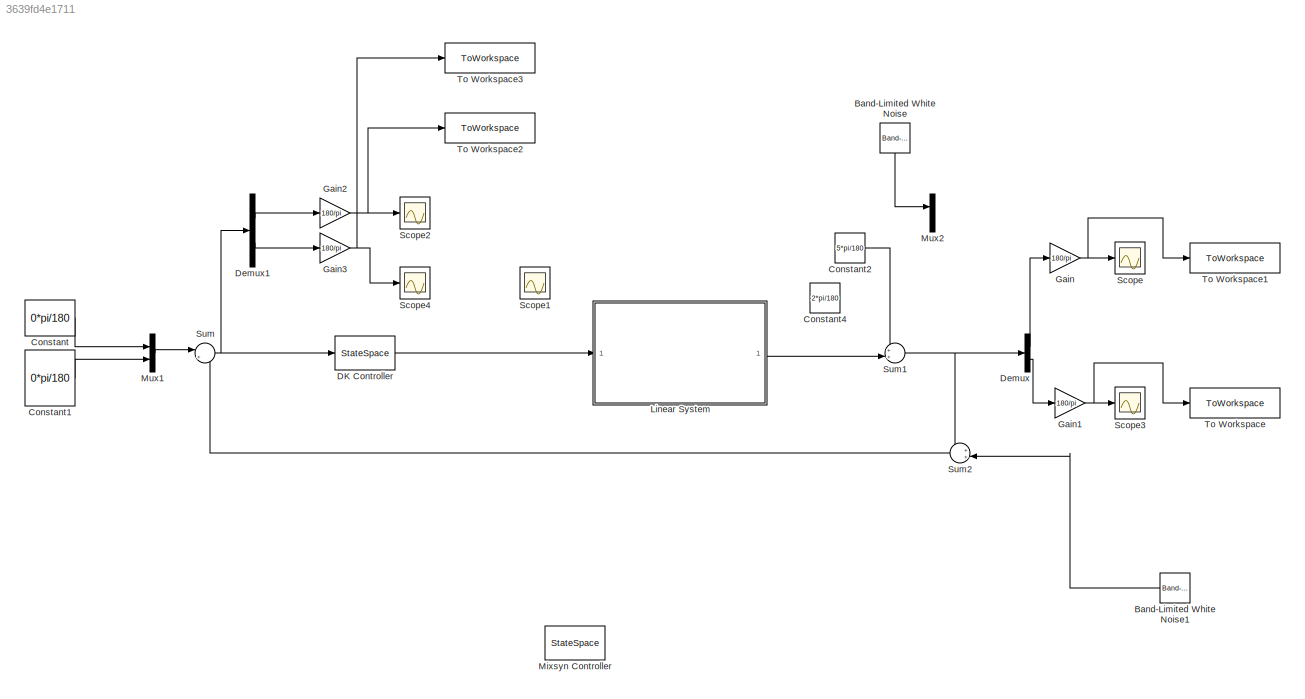
MODEL slx_3639fd4e1711
KIND model
CONFIG AbsTol = auto
CONFIG EnableMultiTasking = off
CONFIG FixedStep = auto
CONFIG MaxStep = auto
CONFIG MinStep = auto
CONFIG RelTol = 1e-3
CONFIG SampleTimeConstraint = Unconstrained
CONFIG SolverName = VariableStepAuto
CONFIG StartTime = 0.0
CONFIG StopTime = 60
BLOCK [Reference] Band-Limited White Noise  REF=simulink/Sources/Band-Limited
White Noise
  NameLocation = left
  SourceBlock = simulink/Sources/Band-Limited\nWhite Noise
  SourceType = Band-Limited White Noise.
BLOCK [Reference] Band-Limited White Noise1  REF=simulink/Sources/Band-Limited
White Noise
  NameLocation = top
  SourceBlock = simulink/Sources/Band-Limited\nWhite Noise
  SourceType = Band-Limited White Noise.
BLOCK [Constant] Constant
  Value = 0*pi/180
BLOCK [Constant] Constant1
  Value = 0*pi/180
BLOCK [Constant] Constant2
  Value = 5*pi/180
BLOCK [Constant] Constant4
  Value = 2*pi/180
BLOCK [StateSpace] DK Controller
  A = K_musyn.A
  B = K_musyn.B
  C = K_musyn.C
  D = K_musyn.D
  InitialCondition = zeros(length(K_musyn.A),1)
BLOCK [Demux] Demux
  Outputs = 2
BLOCK [Demux] Demux1
  Outputs = 2
BLOCK [Gain] Gain
  Gain = 180/pi
BLOCK [Gain] Gain1
  Gain = 180/pi
BLOCK [Gain] Gain2
  Gain = 180/pi
BLOCK [Gain] Gain3
  Gain = 180/pi
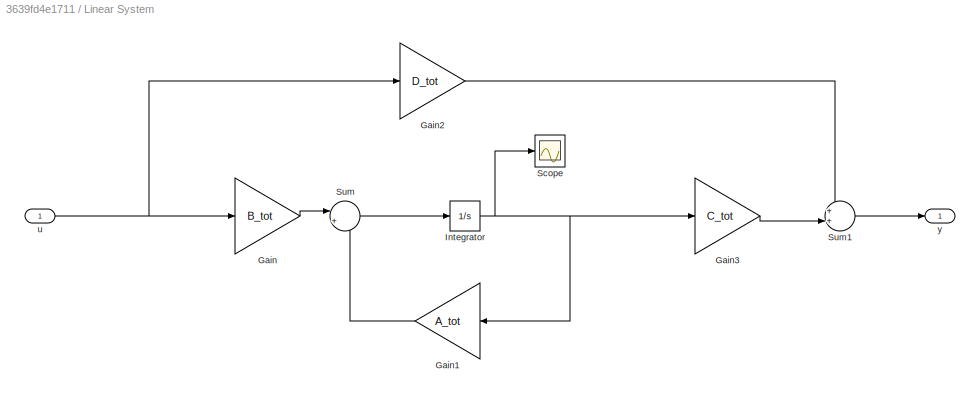
BLOCK [SubSystem] Linear System
BLOCK [Gain] Linear System/Gain
  Gain = B_tot
  Multiplication = Matrix(K*u)
BLOCK [Gain] Linear System/Gain1
  Gain = A_tot
  Multiplication = Matrix(K*u)
  NameLocation = top
BLOCK [Gain] Linear System/Gain2
  Gain = D_tot
  Multiplication = Matrix(K*u)
BLOCK [Gain] Linear System/Gain3
  Gain = C_tot
  Multiplication = Matrix(K*u)
BLOCK [Integrator] Linear System/Integrator
  InitialCondition = [0 0 0 0]
BLOCK [Scope] Linear System/Scope
  Floating = off
  NumInputPorts = 1
  ScopeSpecificationString = Simulink.scopes.TimeScopeBlockCfg('CurrentConfiguration', extmgr.ConfigurationSet(extmgr.Configuration('Core','General UI',true),extmgr.Configuration('Core','Source UI',true),extmgr.Configuration('Sources','WiredSimulink',true,'DataLoggingVariableName','ScopeData1'),extmgr.Configuration('Visuals','Time Domain',true,'SerializedDisplays',{struct('MinYLimReal','-225.53894','MaxYLimReal','224.62719','...<+1465ch>
BLOCK [Sum] Linear System/Sum
  Inputs = |++
BLOCK [Sum] Linear System/Sum1
  Inputs = ++|
BLOCK [Inport] Linear System/u
BLOCK [Outport] Linear System/y
BLOCK [StateSpace] Mixsyn Controller
  A = K_ms.A
  B = K_ms.B
  C = K_ms.C
  Commented = on
  D = K_ms.D
  InitialCondition = zeros(length(K_ms.A),1)
BLOCK [Mux] Mux1
  DisplayOption = bar
  Inputs = 2
BLOCK [Mux] Mux2
  DisplayOption = bar
  Inputs = 2
BLOCK [Scope] Scope
  Floating = off
  NumInputPorts = 1
  ScopeSpecificationString = Simulink.scopes.TimeScopeBlockCfg('CurrentConfiguration', extmgr.ConfigurationSet(extmgr.Configuration('Core','General UI',true),extmgr.Configuration('Core','Source UI',true),extmgr.Configuration('Sources','WiredSimulink',true),extmgr.Configuration('Visuals','Time Domain',true,'SerializedDisplays',{struct('MinYLimReal','-6.07237','MaxYLimReal','14.4635','YLabelReal','','MinYLimMag','0.00000','MaxY...<+1430ch>
BLOCK [Scope] Scope1
  Floating = off
  NumInputPorts = 1
  ScopeSpecificationString = Simulink.scopes.TimeScopeBlockCfg('CurrentConfiguration', extmgr.ConfigurationSet(extmgr.Configuration('Core','General UI',true),extmgr.Configuration('Core','Source UI',true),extmgr.Configuration('Sources','WiredSimulink',true,'DataLoggingVariableName','ScopeData1'),extmgr.Configuration('Visuals','Time Domain',true,'SerializedDisplays',{struct('MinYLimReal','-0.30004','MaxYLimReal','0.49405','YLab...<+1476ch>
BLOCK [Scope] Scope2
  Floating = off
  NumInputPorts = 1
  ScopeSpecificationString = Simulink.scopes.TimeScopeBlockCfg('CurrentConfiguration', extmgr.ConfigurationSet(extmgr.Configuration('Core','General UI',true),extmgr.Configuration('Core','Source UI',true),extmgr.Configuration('Sources','WiredSimulink',true,'DataLoggingVariableName','ScopeData2'),extmgr.Configuration('Visuals','Time Domain',true,'SerializedDisplays',{struct('MinYLimReal','-40.51341','MaxYLimReal','22.86502','YL...<+1443ch>
BLOCK [Scope] Scope3
  Floating = off
  NumInputPorts = 1
  ScopeSpecificationString = Simulink.scopes.TimeScopeBlockCfg('CurrentConfiguration', extmgr.ConfigurationSet(extmgr.Configuration('Core','General UI',true),extmgr.Configuration('Core','Source UI',true),extmgr.Configuration('Sources','WiredSimulink',true,'DataLoggingVariableName','ScopeData3'),extmgr.Configuration('Visuals','Time Domain',true,'SerializedDisplays',{struct('MinYLimReal','-52.86183','MaxYLimReal','49.85504','YL...<+1476ch>
BLOCK [Scope] Scope4
  Floating = off
  NumInputPorts = 1
  ScopeSpecificationString = Simulink.scopes.TimeScopeBlockCfg('CurrentConfiguration', extmgr.ConfigurationSet(extmgr.Configuration('Core','General UI',true),extmgr.Configuration('Core','Source UI',true),extmgr.Configuration('Sources','WiredSimulink',true,'DataLoggingVariableName','ScopeData2'),extmgr.Configuration('Visuals','Time Domain',true,'SerializedDisplays',{struct('MinYLimReal','-7.11969','MaxYLimReal','14.0772','YLab...<+1437ch>
BLOCK [Sum] Sum
  Inputs = |+-
BLOCK [Sum] Sum1
  Inputs = ++|
BLOCK [Sum] Sum2
  Inputs = ++|
  NameLocation = top
BLOCK [ToWorkspace] To Workspace
  FixptAsFi = on
  MaxDataPoints = inf
  SampleTime = -1
  SaveFormat = Timeseries
  VariableName = phi_dot_plot_h_inf
BLOCK [ToWorkspace] To Workspace1
  FixptAsFi = on
  MaxDataPoints = inf
  SampleTime = -1
  SaveFormat = Timeseries
  VariableName = phi_plot_h_inf
BLOCK [ToWorkspace] To Workspace2
  FixptAsFi = on
  MaxDataPoints = inf
  SampleTime = -1
  SaveFormat = Timeseries
  VariableName = err_phi_H_inf
BLOCK [ToWorkspace] To Workspace3
  FixptAsFi = on
  MaxDataPoints = inf
  SampleTime = -1
  SaveFormat = Timeseries
  VariableName = err_phi_dot_H_inf
LINE Band-Limited White Noise1:1 -> Sum2:2
LINE Band-Limited White Noise:1 -> Mux2:1
LINE Constant1:1 -> Mux1:2
LINE Constant2:1 -> Sum1:1
LINE Constant:1 -> Mux1:1
LINE DK Controller:1 -> Linear System:1
LINE Demux1:1 -> Gain2:1
LINE Demux1:2 -> Gain3:1
LINE Demux:1 -> Gain:1
LINE Demux:2 -> Gain1:1
NET Gain1:1 -> Scope3:1, To Workspace:1
NET Gain2:1 -> Scope2:1, To Workspace2:1
NET Gain3:1 -> Scope4:1, To Workspace3:1
NET Gain:1 -> Scope:1, To Workspace1:1
LINE Linear System/Gain1:1 -> Linear System/Sum:2
LINE Linear System/Gain2:1 -> Linear System/Sum1:1
LINE Linear System/Gain3:1 -> Linear System/Sum1:2
LINE Linear System/Gain:1 -> Linear System/Sum:1
NET Linear System/Integrator:1 -> Linear System/Gain1:1, Linear System/Gain3:1, Linear System/Scope:1
LINE Linear System/Sum1:1 -> Linear System/y:1
LINE Linear System/Sum:1 -> Linear System/Integrator:1
NET Linear System/u:1 -> Linear System/Gain2:1, Linear System/Gain:1
LINE Linear System:1 -> Sum1:2
LINE Mux1:1 -> Sum:1
NET Sum1:1 -> Demux:1, Sum2:1
LINE Sum2:1 -> Sum:2
NET Sum:1 -> DK Controller:1, Demux1:1
note: NET lines group one-source signal fan-out (src -> all destinations, sorted); 1:1 wires keep LINE
